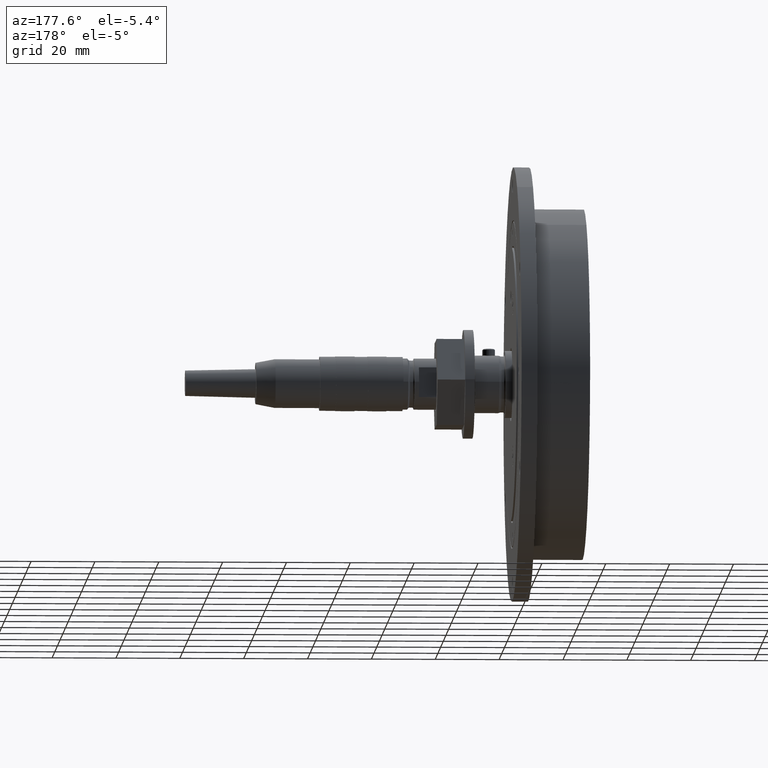
[diagram: clean part render]
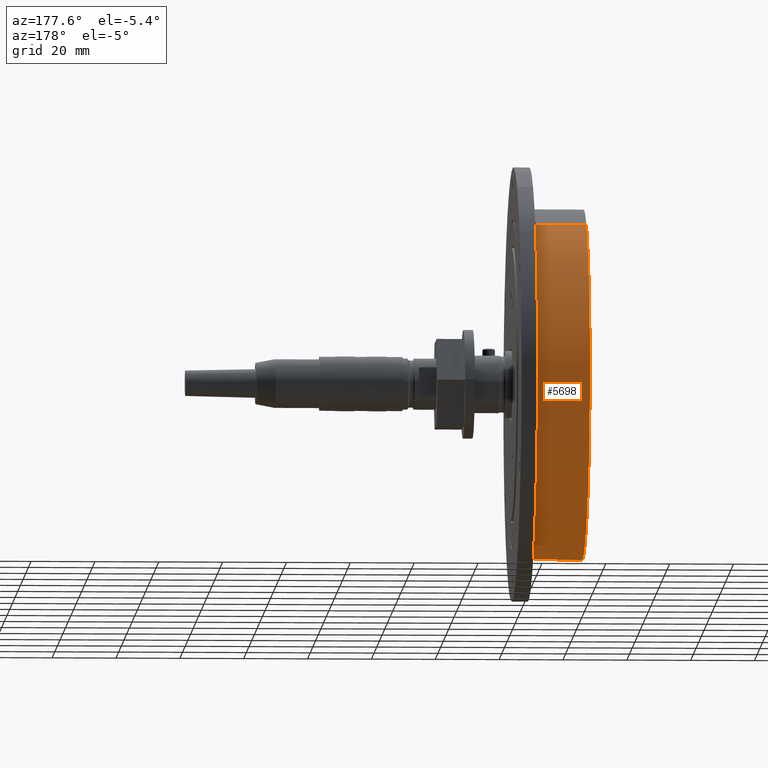
[diagram: same view with one face highlighted and labeled with its STEP entity id]
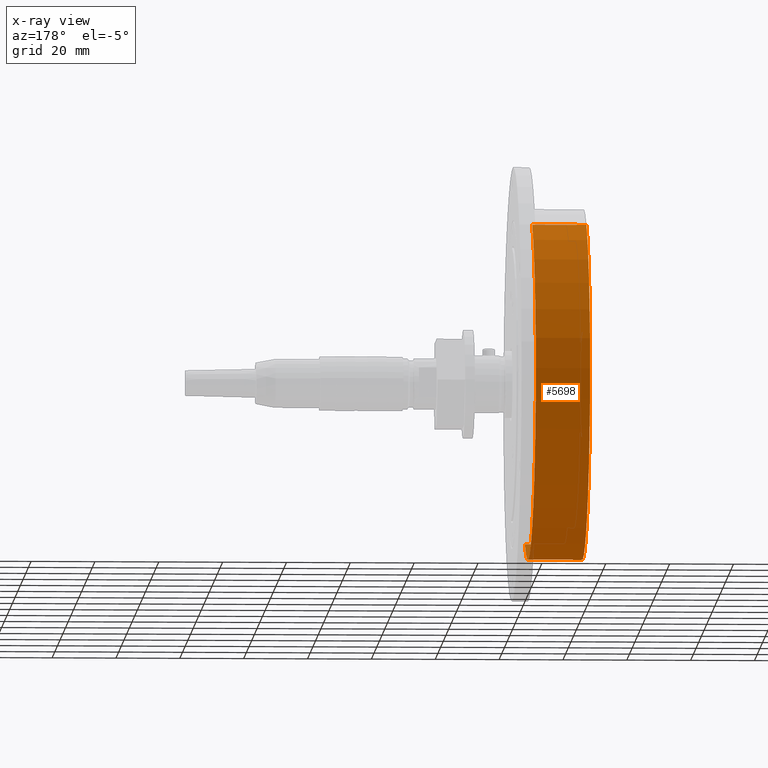
[diagram: x-ray of the same camera — body ghosted, the highlighted face saturated]
A machine part, auxiliary view. The second image highlights one B-rep face of the part: STEP entity #5698.
The next image is the same camera in x-ray: the body ghosted, the highlighted face saturated — about 1% of this face is hidden behind the body in this view.
In plain terms, the highlighted cylindrical surface (partial cylindrical patch) has radius 55 mm, axis along (1, -0, 0).
Its self-contained STEP definition (entity closure, byte-faithful):
#4644=CARTESIAN_POINT('',(6.500000000000057,42.500000000000000,0.0));
#4645=VERTEX_POINT('',#4644);
#4646=CARTESIAN_POINT('',(-10.500000000000000,42.500000000000000,0.0));
#4647=VERTEX_POINT('',#4646);
#4648=CARTESIAN_POINT('',(6.500000000000057,42.500000000000000,0.0));
#4649=DIRECTION('',(-1.0,0.0,0.0));
#4650=VECTOR('',#4649,17.000000000000057);
#4651=LINE('',#4648,#4650);
#4652=EDGE_CURVE('',#4645,#4647,#4651,.T.);
#4654=CARTESIAN_POINT('',(6.500000000000071,-67.500000000000000,-6.735335E-015));
#4655=VERTEX_POINT('',#4654);
#4663=CARTESIAN_POINT('',(-10.499999999999986,-67.500000000000000,-6.735335E-015));
#4664=VERTEX_POINT('',#4663);
#4665=CARTESIAN_POINT('',(6.500000000000071,-67.500000000000000,-6.735335E-015));
#4666=DIRECTION('',(-1.0,0.0,0.0));
#4667=VECTOR('',#4666,17.000000000000057);
#4668=LINE('',#4665,#4667);
#4669=EDGE_CURVE('',#4655,#4664,#4668,.T.);
#5400=CARTESIAN_POINT('',(6.500000000000064,-12.499999999999998,0.0));
#5401=DIRECTION('',(1.0,0.0,0.0));
#5402=DIRECTION('',(0.0,1.0,0.0));
#5403=AXIS2_PLACEMENT_3D('',#5400,#5401,#5402);
#5404=CIRCLE('',#5403,55.0);
#5405=EDGE_CURVE('',#4645,#4655,#5404,.T.);
#5672=CARTESIAN_POINT('',(-10.499999999999993,-12.500000000000000,0.0));
#5673=DIRECTION('',(1.0,0.0,0.0));
#5674=DIRECTION('',(0.0,1.0,0.0));
#5675=AXIS2_PLACEMENT_3D('',#5672,#5673,#5674);
#5676=CIRCLE('',#5675,55.0);
#5677=EDGE_CURVE('',#4647,#4664,#5676,.T.);
#5687=CARTESIAN_POINT('',(-1.999999999999965,-12.499999999999998,0.0));
#5688=DIRECTION('',(1.0,1.224606E-016,0.0));
#5689=DIRECTION('',(0.0,1.0,0.0));
#5690=AXIS2_PLACEMENT_3D('',#5687,#5688,#5689);
#5691=CYLINDRICAL_SURFACE('',#5690,55.0);
#5692=ORIENTED_EDGE('',*,*,#4652,.T.);
#5693=ORIENTED_EDGE('',*,*,#5677,.T.);
#5694=ORIENTED_EDGE('',*,*,#4669,.F.);
#5695=ORIENTED_EDGE('',*,*,#5405,.F.);
#5696=EDGE_LOOP('',(#5692,#5693,#5694,#5695));
#5697=FACE_OUTER_BOUND('',#5696,.T.);
#5698=ADVANCED_FACE('',(#5697),#5691,.T.);